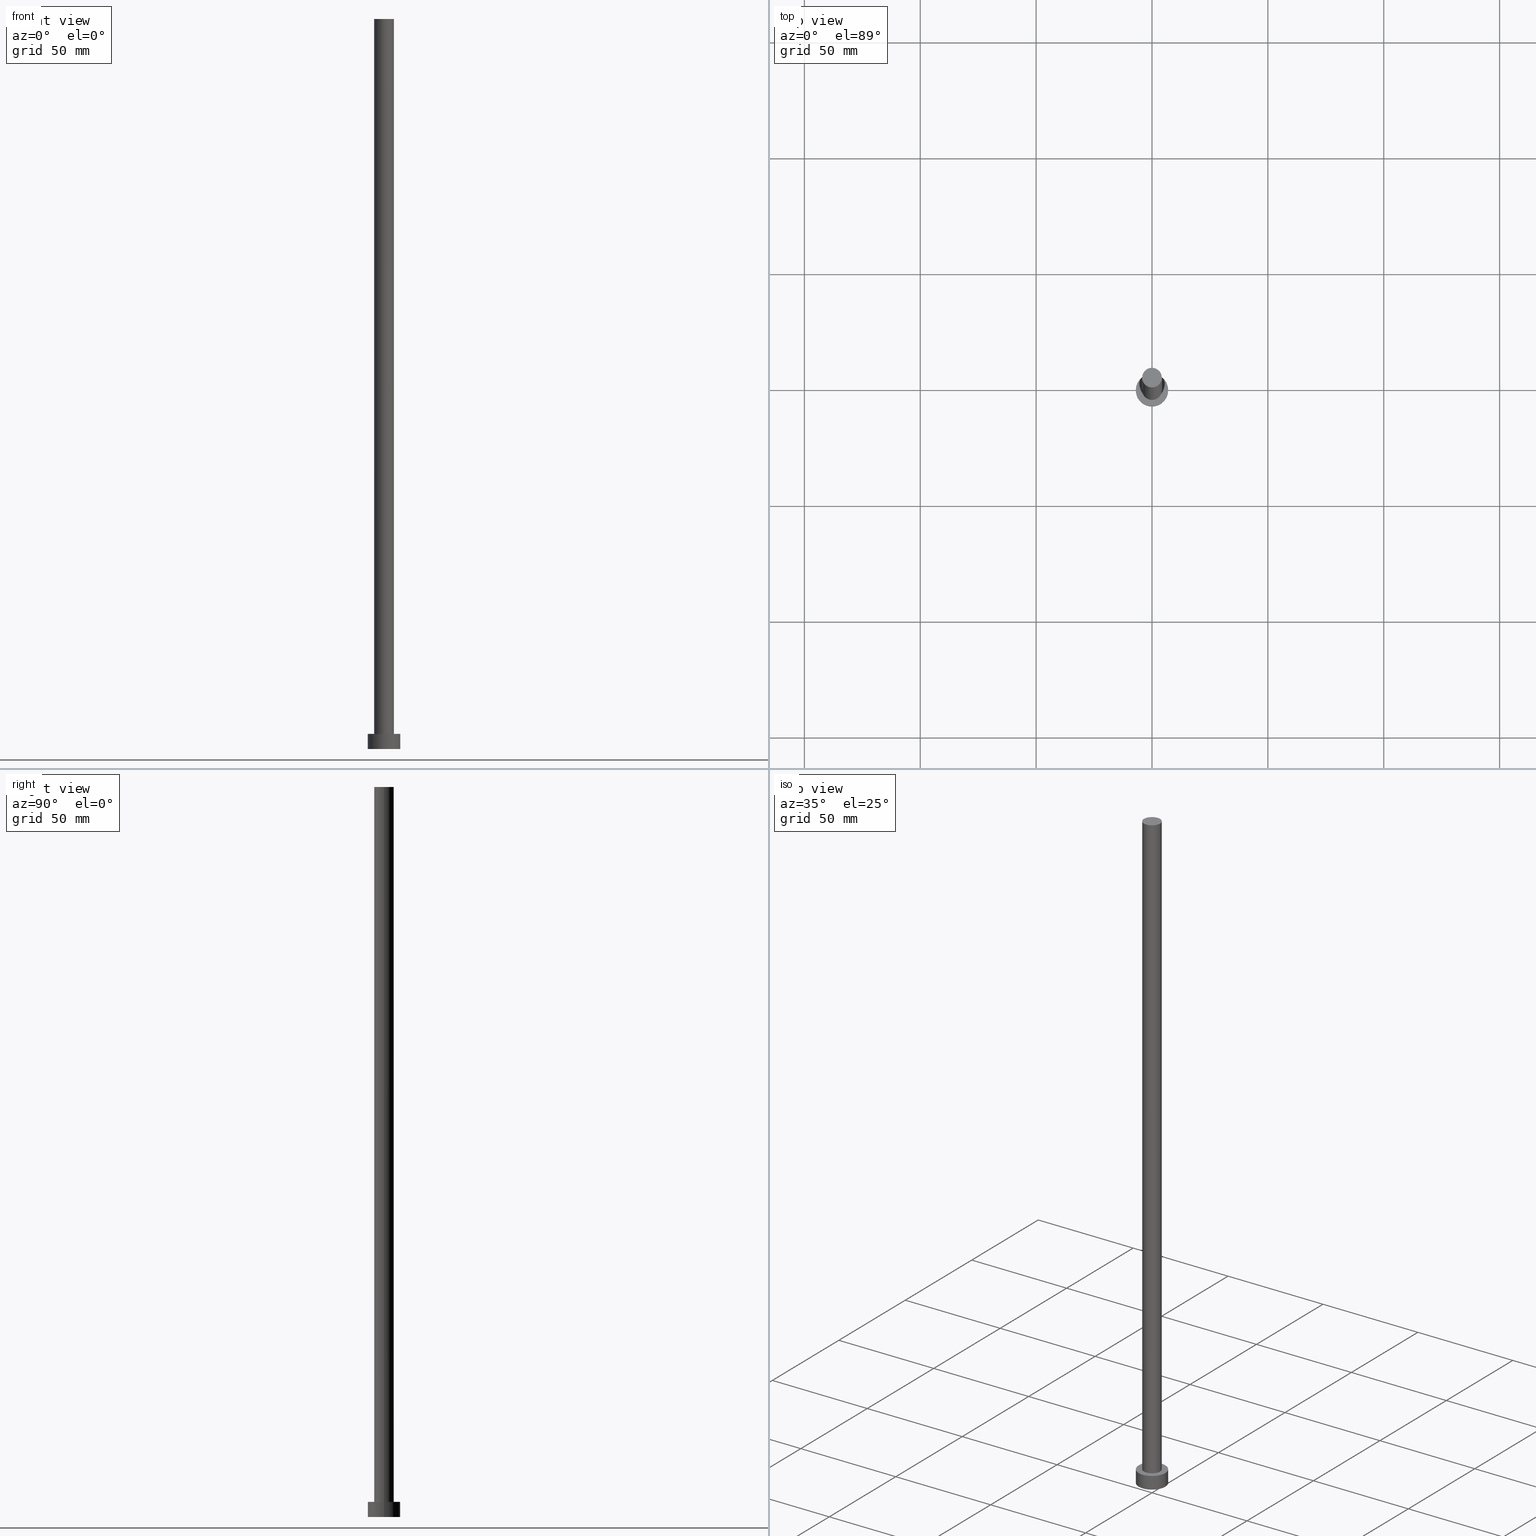
[diagram: canonical four-view strip — front | top / right | iso, engineering-drawing reading convention]
A machine part, canonical four-view strip (front | top / right | iso — engineering-drawing reading convention). The complete STEP part file that produces these views, byte-faithful:
ISO-10303-21;
HEADER;
FILE_DESCRIPTION (( 'STEP AP203' ),
    '1' );
FILE_NAME ('4477.STEP',
    '2023-02-13T13:48:01',
    ( '' ),
    ( '' ),
    'SwSTEP 2.0',
    'SolidWorks 2019',
    '' );
FILE_SCHEMA (( 'CONFIG_CONTROL_DESIGN' ));
ENDSEC;

DATA;
#1 = DATE_AND_TIME ( #44, #243 ) ;
#2 = CALENDAR_DATE ( 2023, 13, 2 ) ;
#3 = CC_DESIGN_APPROVAL ( #224, ( #231 ) ) ;
#4 = CARTESIAN_POINT ( 'NONE',  ( -7.000000000000000000, 0.000000000000000000, 0.000000000000000000 ) ) ;
#5 = DIRECTION ( 'NONE',  ( -0.000000000000000000, -0.000000000000000000, -1.000000000000000000 ) ) ;
#6 = CARTESIAN_POINT ( 'NONE',  ( 0.000000000000000000, 0.000000000000000000, 6.500000000000000000 ) ) ;
#7 = CARTESIAN_POINT ( 'NONE',  ( 0.000000000000000000, 0.000000000000000000, 0.000000000000000000 ) ) ;
#8 = ORIENTED_EDGE ( 'NONE', *, *, #140, .F. ) ;
#9 = FACE_OUTER_BOUND ( 'NONE', #138, .T. ) ;
#10 = ADVANCED_FACE ( 'NONE', ( #40 ), #19, .T. ) ;
#11 = EDGE_CURVE ( 'NONE', #137, #250, #232, .T. ) ;
#12 = AXIS2_PLACEMENT_3D ( 'NONE', #185, #147, #91 ) ;
#13 = APPROVAL_DATE_TIME ( #60, #174 ) ;
#14 = PERSON_AND_ORGANIZATION ( #179, #188 ) ;
#15 = EDGE_CURVE ( 'NONE', #250, #137, #253, .T. ) ;
#16 = COORDINATED_UNIVERSAL_TIME_OFFSET ( 1, 0, .AHEAD. ) ;
#17 = VECTOR ( 'NONE', #55, 1000.000000000000000 ) ;
#18 = COORDINATED_UNIVERSAL_TIME_OFFSET ( 1, 0, .AHEAD. ) ;
#19 = CYLINDRICAL_SURFACE ( 'NONE', #75, 4.250000000000000000 ) ;
#20 = APPROVAL_ROLE ( '' ) ;
#21 = EDGE_CURVE ( 'NONE', #250, #154, #85, .T. ) ;
#22 = APPROVAL_ROLE ( '' ) ;
#23 = AXIS2_PLACEMENT_3D ( 'NONE', #160, #146, #46 ) ;
#24 = DIRECTION ( 'NONE',  ( 0.000000000000000000, 0.000000000000000000, 1.000000000000000000 ) ) ;
#25 = DIRECTION ( 'NONE',  ( -0.000000000000000000, -0.000000000000000000, -1.000000000000000000 ) ) ;
#26 = DIRECTION ( 'NONE',  ( 0.000000000000000000, 0.000000000000000000, 1.000000000000000000 ) ) ;
#27 = FACE_BOUND ( 'NONE', #151, .T. ) ;
#28 = MANIFOLD_SOLID_BREP ( 'P�idat vysunut�m3', #170 ) ;
#29 = FACE_OUTER_BOUND ( 'NONE', #169, .T. ) ;
#30 = DIRECTION ( 'NONE',  ( 1.000000000000000000, 0.000000000000000000, 0.000000000000000000 ) ) ;
#31 = APPLICATION_CONTEXT ( 'configuration controlled 3d designs of mechanical parts and assemblies' ) ;
#32 = DIRECTION ( 'NONE',  ( 1.000000000000000000, 0.000000000000000000, -0.000000000000000000 ) ) ;
#33 = VECTOR ( 'NONE', #74, 1000.000000000000000 ) ;
#34 = ORIENTED_EDGE ( 'NONE', *, *, #15, .T. ) ;
#35 = ORIENTED_EDGE ( 'NONE', *, *, #43, .F. ) ;
#36 = ORIENTED_EDGE ( 'NONE', *, *, #168, .F. ) ;
#37 = CALENDAR_DATE ( 2023, 13, 2 ) ;
#38 = PERSON_AND_ORGANIZATION_ROLE ( 'classification_officer' ) ;
#39 = CARTESIAN_POINT ( 'NONE',  ( -7.000000000000000000, 0.000000000000000000, 6.500000000000000000 ) ) ;
#40 = FACE_OUTER_BOUND ( 'NONE', #118, .T. ) ;
#41 = CIRCLE ( 'NONE', #78, 4.250000000000000000 ) ;
#42 = AXIS2_PLACEMENT_3D ( 'NONE', #98, #197, #124 ) ;
#43 = EDGE_CURVE ( 'NONE', #154, #219, #99, .T. ) ;
#44 = CALENDAR_DATE ( 2023, 13, 2 ) ;
#45 = DATE_AND_TIME ( #2, #207 ) ;
#46 = DIRECTION ( 'NONE',  ( 1.000000000000000000, 0.000000000000000000, 0.000000000000000000 ) ) ;
#47 = DIRECTION ( 'NONE',  ( 1.000000000000000000, 0.000000000000000000, 0.000000000000000000 ) ) ;
#48 = CARTESIAN_POINT ( 'NONE',  ( -4.250000000000000000, 0.000000000000000000, 315.0000000000000000 ) ) ;
#49 = CARTESIAN_POINT ( 'NONE',  ( 7.000000000000000000, 8.572527594031471218E-16, 0.000000000000000000 ) ) ;
#50 = PERSON_AND_ORGANIZATION_ROLE ( 'design_owner' ) ;
#51 = DIRECTION ( 'NONE',  ( 1.000000000000000000, 0.000000000000000000, 0.000000000000000000 ) ) ;
#52 = APPROVAL_PERSON_ORGANIZATION ( #141, #174, #20 ) ;
#53 = PLANE ( 'NONE',  #236 ) ;
#54 = CYLINDRICAL_SURFACE ( 'NONE', #116, 4.250000000000000000 ) ;
#55 = DIRECTION ( 'NONE',  ( -0.000000000000000000, -0.000000000000000000, -1.000000000000000000 ) ) ;
#56 = EDGE_LOOP ( 'NONE', ( #61, #57, #235, #187 ) ) ;
#57 = ORIENTED_EDGE ( 'NONE', *, *, #140, .T. ) ;
#58 = PRODUCT ( '4477', '4477', '', ( #89 ) ) ;
#59 = CYLINDRICAL_SURFACE ( 'NONE', #42, 7.000000000000000000 ) ;
#60 = DATE_AND_TIME ( #37, #218 ) ;
#61 = ORIENTED_EDGE ( 'NONE', *, *, #129, .F. ) ;
#62 = EDGE_CURVE ( 'NONE', #137, #219, #82, .T. ) ;
#63 = CIRCLE ( 'NONE', #198, 4.250000000000000000 ) ;
#64 = LOCAL_TIME ( 14, 48, 1.000000000000000000, #16 ) ;
#65 = PERSON_AND_ORGANIZATION_ROLE ( 'design_supplier' ) ;
#66 = DATE_TIME_ROLE ( 'creation_date' ) ;
#67 = CARTESIAN_POINT ( 'NONE',  ( 4.250000000000000000, 5.204748896376249713E-16, 315.0000000000000000 ) ) ;
#68 = CARTESIAN_POINT ( 'NONE',  ( 4.250000000000000000, 5.204748896376249713E-16, 6.500000000000000000 ) ) ;
#69 = CARTESIAN_POINT ( 'NONE',  ( 0.000000000000000000, 0.000000000000000000, 6.500000000000000000 ) ) ;
#70 = PLANE ( 'NONE',  #102 ) ;
#71 = APPROVAL_STATUS ( 'not_yet_approved' ) ;
#72 = ORIENTED_EDGE ( 'NONE', *, *, #92, .F. ) ;
#73 = PRODUCT_RELATED_PRODUCT_CATEGORY ( 'detail', '', ( #58 ) ) ;
#74 = DIRECTION ( 'NONE',  ( -0.000000000000000000, -0.000000000000000000, -1.000000000000000000 ) ) ;
#75 = AXIS2_PLACEMENT_3D ( 'NONE', #120, #192, #226 ) ;
#76 = APPROVAL_PERSON_ORGANIZATION ( #166, #224, #22 ) ;
#77 = FACE_OUTER_BOUND ( 'NONE', #173, .T. ) ;
#78 = AXIS2_PLACEMENT_3D ( 'NONE', #205, #184, #161 ) ;
#79 =( LENGTH_UNIT ( ) NAMED_UNIT ( * ) SI_UNIT ( .MILLI., .METRE. ) );
#80 = DATE_AND_TIME ( #199, #130 ) ;
#81 = CC_DESIGN_PERSON_AND_ORGANIZATION_ASSIGNMENT ( #193, #38, ( #217 ) ) ;
#82 = LINE ( 'NONE', #225, #156 ) ;
#83 = DIRECTION ( 'NONE',  ( 0.000000000000000000, 0.000000000000000000, 1.000000000000000000 ) ) ;
#84 = FACE_OUTER_BOUND ( 'NONE', #210, .T. ) ;
#85 = LINE ( 'NONE', #246, #33 ) ;
#86 = VECTOR ( 'NONE', #25, 1000.000000000000000 ) ;
#87 = DIRECTION ( 'NONE',  ( -1.000000000000000000, 0.000000000000000000, 0.000000000000000000 ) ) ;
#88 = DIRECTION ( 'NONE',  ( 0.000000000000000000, 0.000000000000000000, 1.000000000000000000 ) ) ;
#89 = MECHANICAL_CONTEXT ( 'NONE', #31, 'mechanical' ) ;
#90 = DATE_TIME_ROLE ( 'classification_date' ) ;
#91 = DIRECTION ( 'NONE',  ( 1.000000000000000000, 0.000000000000000000, 0.000000000000000000 ) ) ;
#92 = EDGE_CURVE ( 'NONE', #219, #154, #209, .T. ) ;
#93 = FACE_OUTER_BOUND ( 'NONE', #103, .T. ) ;
#94 = PERSON_AND_ORGANIZATION ( #179, #188 ) ;
#95 = CARTESIAN_POINT ( 'NONE',  ( 7.000000000000000000, 8.572527594031471218E-16, 6.500000000000000000 ) ) ;
#96 = ORIENTED_EDGE ( 'NONE', *, *, #15, .F. ) ;
#97 = ORIENTED_EDGE ( 'NONE', *, *, #125, .F. ) ;
#98 = CARTESIAN_POINT ( 'NONE',  ( 0.000000000000000000, 0.000000000000000000, 6.500000000000000000 ) ) ;
#99 = CIRCLE ( 'NONE', #12, 7.000000000000000000 ) ;
#100 = PERSON_AND_ORGANIZATION ( #179, #188 ) ;
#101 = ORIENTED_EDGE ( 'NONE', *, *, #11, .T. ) ;
#102 = AXIS2_PLACEMENT_3D ( 'NONE', #244, #247, #248 ) ;
#103 = EDGE_LOOP ( 'NONE', ( #35, #72 ) ) ;
#104 = CALENDAR_DATE ( 2023, 13, 2 ) ;
#105 = APPROVAL_STATUS ( 'not_yet_approved' ) ;
#106 = CC_DESIGN_APPROVAL ( #241, ( #217 ) ) ;
#107 = AXIS2_PLACEMENT_3D ( 'NONE', #7, #234, #51 ) ;
#108 = CC_DESIGN_APPROVAL ( #174, ( #249 ) ) ;
#109 = DIRECTION ( 'NONE',  ( 1.000000000000000000, 0.000000000000000000, 0.000000000000000000 ) ) ;
#110 = APPROVAL_DATE_TIME ( #80, #241 ) ;
#111 = EDGE_CURVE ( 'NONE', #191, #212, #134, .T. ) ;
#112 = CARTESIAN_POINT ( 'NONE',  ( 0.000000000000000000, 0.000000000000000000, 315.0000000000000000 ) ) ;
#113 = PLANE ( 'NONE',  #196 ) ;
#114 = EDGE_CURVE ( 'NONE', #117, #191, #181, .T. ) ;
#115 = DIRECTION ( 'NONE',  ( 1.000000000000000000, 0.000000000000000000, -0.000000000000000000 ) ) ;
#116 = AXIS2_PLACEMENT_3D ( 'NONE', #182, #5, #87 ) ;
#117 = VERTEX_POINT ( 'NONE', #48 ) ;
#118 = EDGE_LOOP ( 'NONE', ( #8, #97, #135, #240 ) ) ;
#119 = ORIENTED_EDGE ( 'NONE', *, *, #129, .T. ) ;
#120 = CARTESIAN_POINT ( 'NONE',  ( 0.000000000000000000, 0.000000000000000000, 315.0000000000000000 ) ) ;
#121 = CARTESIAN_POINT ( 'NONE',  ( 0.000000000000000000, 0.000000000000000000, 6.500000000000000000 ) ) ;
#122 = PERSON_AND_ORGANIZATION_ROLE ( 'creator' ) ;
#123 = CC_DESIGN_DATE_AND_TIME_ASSIGNMENT ( #1, #66, ( #231 ) ) ;
#124 = DIRECTION ( 'NONE',  ( -1.000000000000000000, 0.000000000000000000, 0.000000000000000000 ) ) ;
#125 = EDGE_CURVE ( 'NONE', #117, #216, #63, .T. ) ;
#126 =( NAMED_UNIT ( * ) SI_UNIT ( $, .STERADIAN. ) SOLID_ANGLE_UNIT ( ) );
#127 = COORDINATED_UNIVERSAL_TIME_OFFSET ( 1, 0, .AHEAD. ) ;
#128 = DIRECTION ( 'NONE',  ( 0.000000000000000000, 0.000000000000000000, 1.000000000000000000 ) ) ;
#129 = EDGE_CURVE ( 'NONE', #216, #117, #186, .T. ) ;
#130 = LOCAL_TIME ( 14, 48, 1.000000000000000000, #127 ) ;
#131 = AXIS2_PLACEMENT_3D ( 'NONE', #121, #175, #221 ) ;
#132 = CARTESIAN_POINT ( 'NONE',  ( 0.000000000000000000, 0.000000000000000000, 6.500000000000000000 ) ) ;
#133 = CC_DESIGN_PERSON_AND_ORGANIZATION_ASSIGNMENT ( #14, #171, ( #249 ) ) ;
#134 = CIRCLE ( 'NONE', #195, 4.250000000000000000 ) ;
#135 = ORIENTED_EDGE ( 'NONE', *, *, #114, .T. ) ;
#136 = UNCERTAINTY_MEASURE_WITH_UNIT (LENGTH_MEASURE( 1.000000000000000082E-05 ), #79, 'distance_accuracy_value', 'NONE');
#137 = VERTEX_POINT ( 'NONE', #95 ) ;
#138 = EDGE_LOOP ( 'NONE', ( #167, #194, #153, #237 ) ) ;
#139 = SHAPE_DEFINITION_REPRESENTATION ( #251, #158 ) ;
#140 = EDGE_CURVE ( 'NONE', #216, #212, #233, .T. ) ;
#141 = PERSON_AND_ORGANIZATION ( #179, #188 ) ;
#142 = AXIS2_PLACEMENT_3D ( 'NONE', #132, #83, #148 ) ;
#143 =( GEOMETRIC_REPRESENTATION_CONTEXT ( 3 ) GLOBAL_UNCERTAINTY_ASSIGNED_CONTEXT ( ( #136 ) ) GLOBAL_UNIT_ASSIGNED_CONTEXT ( ( #79, #159, #126 ) ) REPRESENTATION_CONTEXT ( 'NONE', 'WORKASPACE' ) );
#144 = DIRECTION ( 'NONE',  ( 0.000000000000000000, 0.000000000000000000, 1.000000000000000000 ) ) ;
#145 = DATE_AND_TIME ( #104, #64 ) ;
#146 = DIRECTION ( 'NONE',  ( 0.000000000000000000, 0.000000000000000000, 1.000000000000000000 ) ) ;
#147 = DIRECTION ( 'NONE',  ( 0.000000000000000000, 0.000000000000000000, 1.000000000000000000 ) ) ;
#148 = DIRECTION ( 'NONE',  ( 1.000000000000000000, 0.000000000000000000, 0.000000000000000000 ) ) ;
#149 = CARTESIAN_POINT ( 'NONE',  ( -4.250000000000000000, 0.000000000000000000, 6.500000000000000000 ) ) ;
#150 = AXIS2_PLACEMENT_3D ( 'NONE', #69, #144, #47 ) ;
#151 = EDGE_LOOP ( 'NONE', ( #172, #36 ) ) ;
#152 = ADVANCED_FACE ( 'NONE', ( #84 ), #53, .T. ) ;
#153 = ORIENTED_EDGE ( 'NONE', *, *, #92, .T. ) ;
#154 = VERTEX_POINT ( 'NONE', #4 ) ;
#155 = CC_DESIGN_SECURITY_CLASSIFICATION ( #217, ( #249 ) ) ;
#156 = VECTOR ( 'NONE', #204, 1000.000000000000000 ) ;
#157 = PERSON_AND_ORGANIZATION ( #179, #188 ) ;
#158 = ADVANCED_BREP_SHAPE_REPRESENTATION ( '4477', ( #28, #107 ), #143 ) ;
#159 =( NAMED_UNIT ( * ) PLANE_ANGLE_UNIT ( ) SI_UNIT ( $, .RADIAN. ) );
#160 = CARTESIAN_POINT ( 'NONE',  ( 0.000000000000000000, 0.000000000000000000, 0.000000000000000000 ) ) ;
#161 = DIRECTION ( 'NONE',  ( 1.000000000000000000, 0.000000000000000000, 0.000000000000000000 ) ) ;
#162 = AXIS2_PLACEMENT_3D ( 'NONE', #163, #128, #227 ) ;
#163 = CARTESIAN_POINT ( 'NONE',  ( 0.000000000000000000, 0.000000000000000000, 315.0000000000000000 ) ) ;
#164 = CARTESIAN_POINT ( 'NONE',  ( 0.000000000000000000, 0.000000000000000000, 315.0000000000000000 ) ) ;
#165 = DIRECTION ( 'NONE',  ( 0.000000000000000000, 0.000000000000000000, 1.000000000000000000 ) ) ;
#166 = PERSON_AND_ORGANIZATION ( #179, #188 ) ;
#167 = ORIENTED_EDGE ( 'NONE', *, *, #11, .F. ) ;
#168 = EDGE_CURVE ( 'NONE', #212, #191, #41, .T. ) ;
#169 = EDGE_LOOP ( 'NONE', ( #34, #101 ) ) ;
#170 = CLOSED_SHELL ( 'NONE', ( #215, #239, #245, #228, #201, #10, #152 ) ) ;
#171 = PERSON_AND_ORGANIZATION_ROLE ( 'creator' ) ;
#172 = ORIENTED_EDGE ( 'NONE', *, *, #111, .F. ) ;
#173 = EDGE_LOOP ( 'NONE', ( #189, #96, #252, #214 ) ) ;
#174 = APPROVAL ( #178, 'NEUR�EN�' ) ;
#175 = DIRECTION ( 'NONE',  ( -0.000000000000000000, -0.000000000000000000, -1.000000000000000000 ) ) ;
#176 = APPROVAL_DATE_TIME ( #45, #224 ) ;
#177 = APPROVAL_ROLE ( '' ) ;
#178 = APPROVAL_STATUS ( 'not_yet_approved' ) ;
#179 = PERSON ( 'NEUR�EN�', 'NEUR�EN�', 'NEUR�EN�', ('NEUR�EN�'), ('NEUR�EN�'), ('NEUR�EN�') ) ;
#180 = CC_DESIGN_PERSON_AND_ORGANIZATION_ASSIGNMENT ( #100, #65, ( #249 ) ) ;
#181 = LINE ( 'NONE', #183, #17 ) ;
#182 = CARTESIAN_POINT ( 'NONE',  ( 0.000000000000000000, 0.000000000000000000, 315.0000000000000000 ) ) ;
#183 = CARTESIAN_POINT ( 'NONE',  ( -4.250000000000000000, 0.000000000000000000, 315.0000000000000000 ) ) ;
#184 = DIRECTION ( 'NONE',  ( 0.000000000000000000, 0.000000000000000000, 1.000000000000000000 ) ) ;
#185 = CARTESIAN_POINT ( 'NONE',  ( 0.000000000000000000, 0.000000000000000000, 0.000000000000000000 ) ) ;
#186 = CIRCLE ( 'NONE', #162, 4.250000000000000000 ) ;
#187 = ORIENTED_EDGE ( 'NONE', *, *, #114, .F. ) ;
#188 = ORGANIZATION ( 'NEUR�EN�', 'NEUR�EN�', '' ) ;
#189 = ORIENTED_EDGE ( 'NONE', *, *, #62, .F. ) ;
#190 = ORIENTED_EDGE ( 'NONE', *, *, #125, .T. ) ;
#191 = VERTEX_POINT ( 'NONE', #149 ) ;
#192 = DIRECTION ( 'NONE',  ( -0.000000000000000000, -0.000000000000000000, -1.000000000000000000 ) ) ;
#193 = PERSON_AND_ORGANIZATION ( #179, #188 ) ;
#194 = ORIENTED_EDGE ( 'NONE', *, *, #62, .T. ) ;
#195 = AXIS2_PLACEMENT_3D ( 'NONE', #230, #26, #30 ) ;
#196 = AXIS2_PLACEMENT_3D ( 'NONE', #6, #88, #115 ) ;
#197 = DIRECTION ( 'NONE',  ( -0.000000000000000000, -0.000000000000000000, -1.000000000000000000 ) ) ;
#198 = AXIS2_PLACEMENT_3D ( 'NONE', #164, #24, #109 ) ;
#199 = CALENDAR_DATE ( 2023, 13, 2 ) ;
#200 = APPROVAL_PERSON_ORGANIZATION ( #223, #241, #177 ) ;
#201 = ADVANCED_FACE ( 'NONE', ( #93 ), #70, .F. ) ;
#202 = CC_DESIGN_DATE_AND_TIME_ASSIGNMENT ( #145, #90, ( #217 ) ) ;
#203 = FACE_OUTER_BOUND ( 'NONE', #56, .T. ) ;
#204 = DIRECTION ( 'NONE',  ( -0.000000000000000000, -0.000000000000000000, -1.000000000000000000 ) ) ;
#205 = CARTESIAN_POINT ( 'NONE',  ( 0.000000000000000000, 0.000000000000000000, 6.500000000000000000 ) ) ;
#206 = APPLICATION_PROTOCOL_DEFINITION ( 'international standard', 'config_control_design', 1994, #31 ) ;
#207 = LOCAL_TIME ( 14, 48, 1.000000000000000000, #222 ) ;
#208 = APPLICATION_PROTOCOL_DEFINITION ( 'international standard', 'config_control_design', 1994, #211 ) ;
#209 = CIRCLE ( 'NONE', #23, 7.000000000000000000 ) ;
#210 = EDGE_LOOP ( 'NONE', ( #190, #119 ) ) ;
#211 = APPLICATION_CONTEXT ( 'configuration controlled 3d designs of mechanical parts and assemblies' ) ;
#212 = VERTEX_POINT ( 'NONE', #68 ) ;
#213 = DESIGN_CONTEXT ( 'detailed design', #211, 'design' ) ;
#214 = ORIENTED_EDGE ( 'NONE', *, *, #43, .T. ) ;
#215 = ADVANCED_FACE ( 'NONE', ( #203 ), #54, .T. ) ;
#216 = VERTEX_POINT ( 'NONE', #229 ) ;
#217 = SECURITY_CLASSIFICATION ( '', '', #220 ) ;
#218 = LOCAL_TIME ( 14, 48, 1.000000000000000000, #238 ) ;
#219 = VERTEX_POINT ( 'NONE', #49 ) ;
#220 = SECURITY_CLASSIFICATION_LEVEL ( 'unclassified' ) ;
#221 = DIRECTION ( 'NONE',  ( -1.000000000000000000, 0.000000000000000000, 0.000000000000000000 ) ) ;
#222 = COORDINATED_UNIVERSAL_TIME_OFFSET ( 1, 0, .AHEAD. ) ;
#223 = PERSON_AND_ORGANIZATION ( #179, #188 ) ;
#224 = APPROVAL ( #71, 'NEUR�EN�' ) ;
#225 = CARTESIAN_POINT ( 'NONE',  ( 7.000000000000000000, 8.572527594031471218E-16, 6.500000000000000000 ) ) ;
#226 = DIRECTION ( 'NONE',  ( -1.000000000000000000, 0.000000000000000000, 0.000000000000000000 ) ) ;
#227 = DIRECTION ( 'NONE',  ( 1.000000000000000000, 0.000000000000000000, 0.000000000000000000 ) ) ;
#228 = ADVANCED_FACE ( 'NONE', ( #27, #29 ), #113, .T. ) ;
#229 = CARTESIAN_POINT ( 'NONE',  ( 4.250000000000000000, 5.204748896376249713E-16, 315.0000000000000000 ) ) ;
#230 = CARTESIAN_POINT ( 'NONE',  ( 0.000000000000000000, 0.000000000000000000, 6.500000000000000000 ) ) ;
#231 = PRODUCT_DEFINITION ( 'NEZN�M�', '', #249, #213 ) ;
#232 = CIRCLE ( 'NONE', #142, 7.000000000000000000 ) ;
#233 = LINE ( 'NONE', #67, #86 ) ;
#234 = DIRECTION ( 'NONE',  ( 0.000000000000000000, 0.000000000000000000, 1.000000000000000000 ) ) ;
#235 = ORIENTED_EDGE ( 'NONE', *, *, #168, .T. ) ;
#236 = AXIS2_PLACEMENT_3D ( 'NONE', #112, #165, #32 ) ;
#237 = ORIENTED_EDGE ( 'NONE', *, *, #21, .F. ) ;
#238 = COORDINATED_UNIVERSAL_TIME_OFFSET ( 1, 0, .AHEAD. ) ;
#239 = ADVANCED_FACE ( 'NONE', ( #9 ), #59, .T. ) ;
#240 = ORIENTED_EDGE ( 'NONE', *, *, #111, .T. ) ;
#241 = APPROVAL ( #105, 'NEUR�EN�' ) ;
#242 = CYLINDRICAL_SURFACE ( 'NONE', #131, 7.000000000000000000 ) ;
#243 = LOCAL_TIME ( 14, 48, 1.000000000000000000, #18 ) ;
#244 = CARTESIAN_POINT ( 'NONE',  ( 0.000000000000000000, 0.000000000000000000, 0.000000000000000000 ) ) ;
#245 = ADVANCED_FACE ( 'NONE', ( #77 ), #242, .T. ) ;
#246 = CARTESIAN_POINT ( 'NONE',  ( -7.000000000000000000, 0.000000000000000000, 6.500000000000000000 ) ) ;
#247 = DIRECTION ( 'NONE',  ( 0.000000000000000000, 0.000000000000000000, 1.000000000000000000 ) ) ;
#248 = DIRECTION ( 'NONE',  ( 1.000000000000000000, 0.000000000000000000, -0.000000000000000000 ) ) ;
#249 = PRODUCT_DEFINITION_FORMATION_WITH_SPECIFIED_SOURCE ( 'LIBOVOLN�', '', #58, .NOT_KNOWN. ) ;
#250 = VERTEX_POINT ( 'NONE', #39 ) ;
#251 = PRODUCT_DEFINITION_SHAPE ( 'NONE', 'NONE',  #231 ) ;
#252 = ORIENTED_EDGE ( 'NONE', *, *, #21, .T. ) ;
#253 = CIRCLE ( 'NONE', #150, 7.000000000000000000 ) ;
#254 = CC_DESIGN_PERSON_AND_ORGANIZATION_ASSIGNMENT ( #94, #50, ( #58 ) ) ;
#255 = CC_DESIGN_PERSON_AND_ORGANIZATION_ASSIGNMENT ( #157, #122, ( #231 ) ) ;
ENDSEC;
END-ISO-10303-21;
